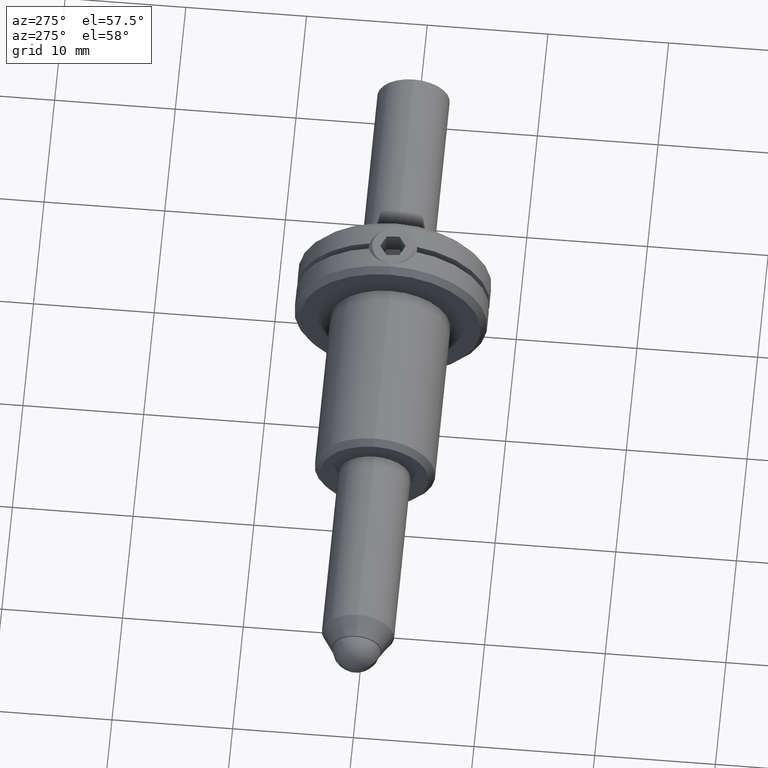
[diagram: clean part render]
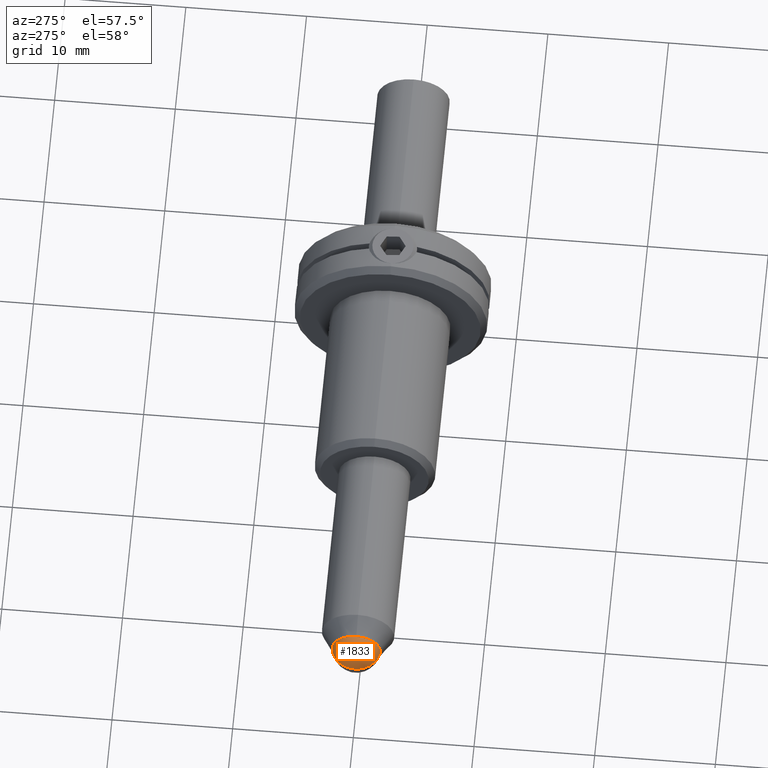
[diagram: same view with one face highlighted and labeled with its STEP entity id]
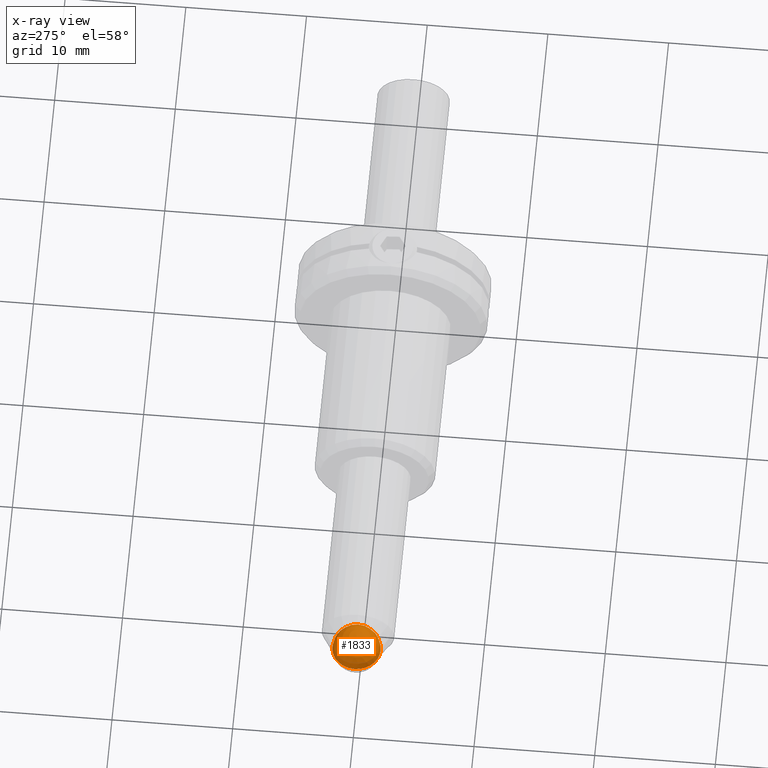
[diagram: x-ray of the same camera — body ghosted, the highlighted face saturated]
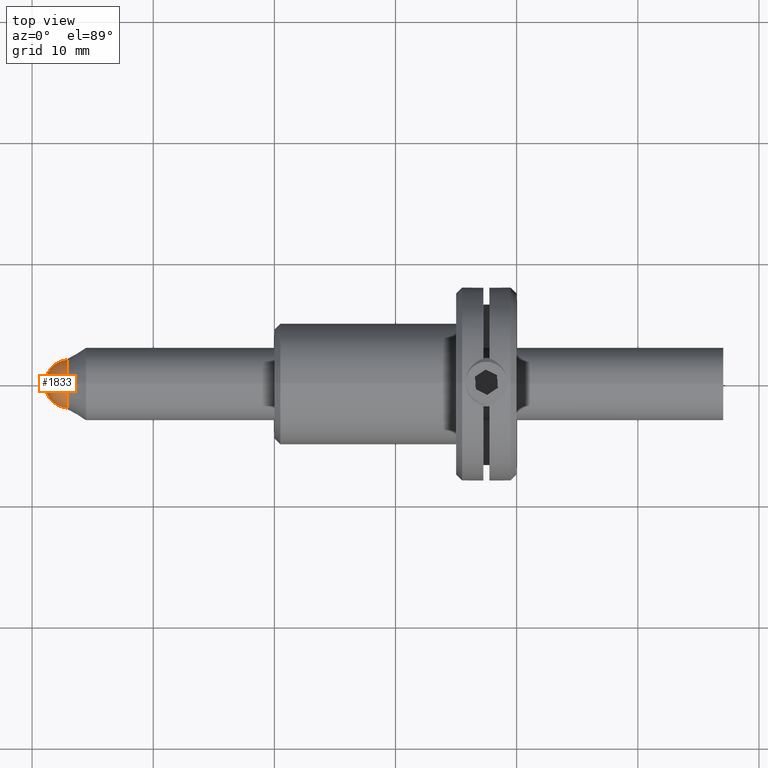
[diagram: same view with one face highlighted and labeled with its STEP entity id]
A machine part, auxiliary view. The second image highlights one B-rep face of the part: STEP entity #1833.
The next image is the same camera in x-ray: the body ghosted, the highlighted face saturated — about 0% of this face is hidden behind the body in this view.
A second angle (top view) of the same face is appended — the face is thin or edge-on in the first view.
In plain terms, the highlighted spherical surface has radius 2 mm.
Its self-contained STEP definition (entity closure, byte-faithful):
#171 = DIRECTION ( 'NONE',  ( -2.465190328815658608E-32, 9.629649721936166436E-35, 1.000000000000000000 ) ) ;
#321 = ORIENTED_EDGE ( 'NONE', *, *, #1746, .T. ) ;
#438 = CARTESIAN_POINT ( 'NONE',  ( -28.95041507641942502, -9.427280373575783327E-17, -6.413503880570385702E-18 ) ) ;
#595 = VERTEX_POINT ( 'NONE', #438 ) ;
#596 = DIRECTION ( 'NONE',  ( 0.000000000000000000, 1.000000000000000000, -1.224646799147353207E-16 ) ) ;
#613 = CIRCLE ( 'NONE', #1660, 2.000000000000000000 ) ;
#749 = SPHERICAL_SURFACE ( 'NONE', #1818, 2.000000000000000000 ) ;
#777 = DIRECTION ( 'NONE',  ( 2.465190328815658608E-32, 0.000000000000000000, -1.000000000000000000 ) ) ;
#867 = ORIENTED_EDGE ( 'NONE', *, *, #1485, .F. ) ;
#876 = CARTESIAN_POINT ( 'NONE',  ( -26.95041507641942502, 2.819187617897747512E-17, -6.413503880570335628E-18 ) ) ;
#927 = DIRECTION ( 'NONE',  ( 1.000000000000000000, 0.000000000000000000, 2.482644068936669027E-32 ) ) ;
#978 = EDGE_LOOP ( 'NONE', ( #867, #321 ) ) ;
#980 = AXIS2_PLACEMENT_3D ( 'NONE', #1354, #171, #927 ) ;
#1306 = VERTEX_POINT ( 'NONE', #1612 ) ;
#1332 = DIRECTION ( 'NONE',  ( 0.000000000000000000, -1.000000000000000000, 0.000000000000000000 ) ) ;
#1340 = CARTESIAN_POINT ( 'NONE',  ( -26.95041507641942502, 2.819187617897747512E-17, -6.413503880570335628E-18 ) ) ;
#1354 = CARTESIAN_POINT ( 'NONE',  ( -26.95041507641942502, 2.819187617897747512E-17, -6.413503880570335628E-18 ) ) ;
#1485 = EDGE_CURVE ( 'NONE', #595, #1306, #613, .T. ) ;
#1511 = FACE_OUTER_BOUND ( 'NONE', #978, .T. ) ;
#1612 = CARTESIAN_POINT ( 'NONE',  ( -24.95041507641942147, -9.427280373575783327E-17, -6.413503880570286324E-18 ) ) ;
#1660 = AXIS2_PLACEMENT_3D ( 'NONE', #876, #1780, #596 ) ;
#1746 = EDGE_CURVE ( 'NONE', #595, #1306, #1815, .T. ) ;
#1780 = DIRECTION ( 'NONE',  ( 2.465190328815658608E-32, -1.224646799147353207E-16, -1.000000000000000000 ) ) ;
#1815 = CIRCLE ( 'NONE', #980, 2.000000000000001776 ) ;
#1818 = AXIS2_PLACEMENT_3D ( 'NONE', #1340, #777, #1332 ) ;
#1833 = ADVANCED_FACE ( 'NONE', ( #1511 ), #749, .T. ) ;